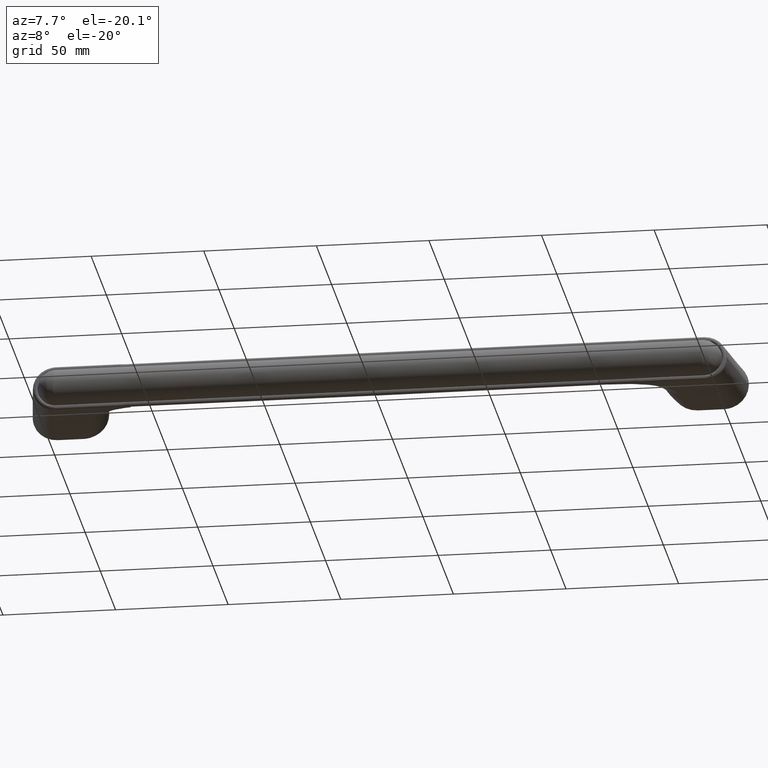
[diagram: clean part render]
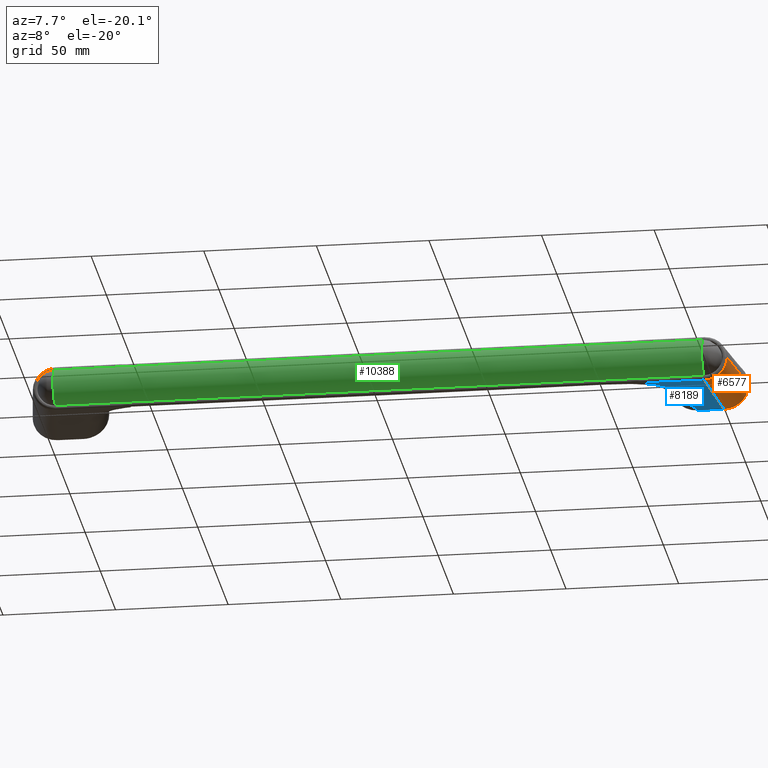
[diagram: same view with three faces highlighted in distinct colors, each labeled with its STEP entity id]
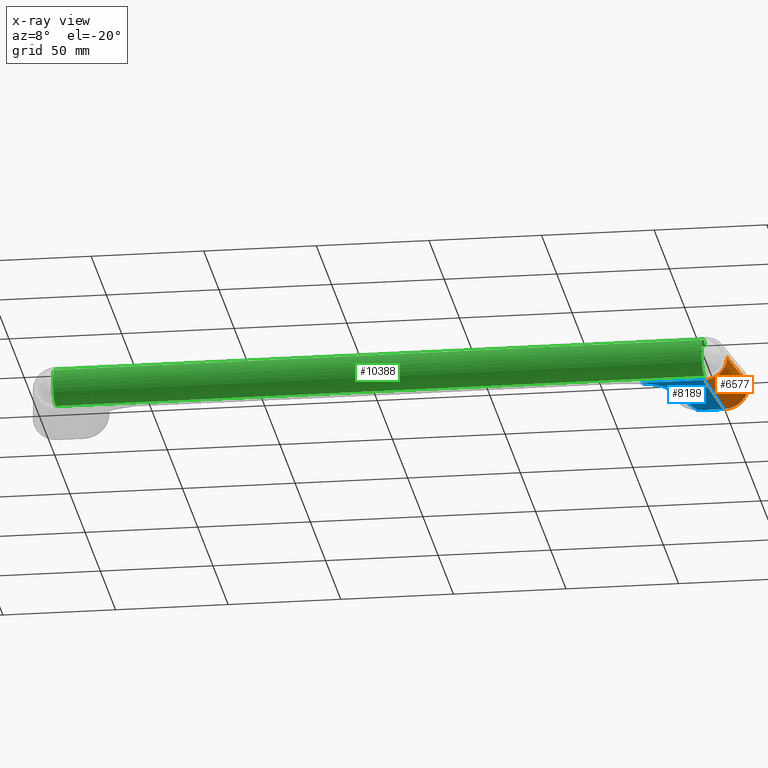
[diagram: x-ray of the same camera — body ghosted, the three highlighted faces saturated]
A machine part, auxiliary view with three faces highlighted in distinct colors.
The next image is the same camera in x-ray (body ghosted, the three faces saturated) — at least one of them is partly hidden behind the body in this view.
Their STEP definitions:

[orange] entity #6577 — the highlighted face is a freeform B-spline surface patch.
#2219=CARTESIAN_POINT('',(154.118395025761000,-0.005863998665268,-8.864281188054550));
#2220=VERTEX_POINT('',#2219);
#2461=CARTESIAN_POINT('',(144.051613881013000,-10.026647000498500,-8.972613018194080));
#2462=VERTEX_POINT('',#2461);
#2476=CARTESIAN_POINT('',(154.118395025761000,-0.005863998665268,-8.864281188054589));
#2477=CARTESIAN_POINT('',(154.118394725462710,-0.026468437212446,-8.864278995876823));
#2478=CARTESIAN_POINT('',(154.118329776194910,-0.047307925365856,-8.864277495472468));
#2479=CARTESIAN_POINT('',(154.118070835938200,-0.088731160652980,-8.864275906319451));
#2480=CARTESIAN_POINT('',(154.117488859197890,-0.150844982726064,-8.864275624686140));
#2481=CARTESIAN_POINT('',(154.114778478953410,-0.295630293106498,-8.864289654323878));
#2482=CARTESIAN_POINT('',(154.103966109948400,-0.584615119141234,-8.864376260649610));
#2483=CARTESIAN_POINT('',(154.085510409716310,-0.831318133291270,-8.864550255386869));
#2484=CARTESIAN_POINT('',(154.036412721906290,-1.323400129509541,-8.865030538050256));
#2485=CARTESIAN_POINT('',(153.987462559544500,-1.649692678402112,-8.865526789468641));
#2486=CARTESIAN_POINT('',(153.889425817109810,-2.136457478682508,-8.866538289922289));
#2487=CARTESIAN_POINT('',(153.852603115897410,-2.298304005113695,-8.866920427862532));
#2488=CARTESIAN_POINT('',(153.771448304156790,-2.618131000233573,-8.867766529222177));
#2489=CARTESIAN_POINT('',(153.727047011242800,-2.776490537233417,-8.868231202682090));
#2490=CARTESIAN_POINT('',(153.582567642318990,-3.246986986963615,-8.869747960414562));
#2491=CARTESIAN_POINT('',(153.359913509787300,-3.862118028114403,-8.872097022251241));
#2492=CARTESIAN_POINT('',(153.077978575219190,-4.453158391340931,-8.875091525490248));
#2493=CARTESIAN_POINT('',(152.843931572714810,-4.887256125905235,-8.877583542802988));
#2494=CARTESIAN_POINT('',(152.762143231233690,-5.030422222153888,-8.878455312215628));
#2495=CARTESIAN_POINT('',(152.633691969100000,-5.242827047545279,-8.879825827896536));
#2496=CARTESIAN_POINT('',(152.589871727844010,-5.313297521827853,-8.880293589338761));
#2497=CARTESIAN_POINT('',(152.500779752243010,-5.452688978723051,-8.881245038903094));
#2498=CARTESIAN_POINT('',(152.455457615451910,-5.521696880186513,-8.881729264401313));
#2499=CARTESIAN_POINT('',(152.225009059622290,-5.863335246814382,-8.884192436140879));
#2500=CARTESIAN_POINT('',(152.028397583181000,-6.125787598361668,-8.886297200454054));
#2501=CARTESIAN_POINT('',(151.611294211080890,-6.629529355245975,-8.890768630784866));
#2502=CARTESIAN_POINT('',(151.390801000508990,-6.870817595303606,-8.893135310863764));
#2503=CARTESIAN_POINT('',(150.925858537964590,-7.332164109190337,-8.898131745318622));
#2504=CARTESIAN_POINT('',(150.681411336465090,-7.552224200163999,-8.900761476658129));
#2505=CARTESIAN_POINT('',(150.360393853525810,-7.813599926709235,-8.904218641579472));
#2506=CARTESIAN_POINT('',(150.295439768244710,-7.865164204763490,-8.904918335216609));
#2507=CARTESIAN_POINT('',(150.164708716119800,-7.966346374664222,-8.906326941501341));
#2508=CARTESIAN_POINT('',(149.967112055001110,-8.115417971746989,-8.908456541301144));
#2509=CARTESIAN_POINT('',(149.765066231131700,-8.256476601227407,-8.910635671920876));
#2510=CARTESIAN_POINT('',(149.355135561880790,-8.528077747564012,-8.915059010255858));
#2511=CARTESIAN_POINT('',(148.793017659059590,-8.862218353909057,-8.921130033701617));
#2512=CARTESIAN_POINT('',(148.200118066207010,-9.140920937816222,-8.927544886325759));
#2513=CARTESIAN_POINT('',(147.743680639823000,-9.328763114719845,-8.932487683284084));
#2514=CARTESIAN_POINT('',(147.589570893582700,-9.387840108803204,-8.934157263917706));
#2515=CARTESIAN_POINT('',(147.277342325848590,-9.498773723982783,-8.937541338683504));
#2516=CARTESIAN_POINT('',(147.120170321067410,-9.550284189239440,-8.939245572588460));
#2517=CARTESIAN_POINT('',(146.647118911500710,-9.692647638346250,-8.944377120536680));
#2518=CARTESIAN_POINT('',(146.329029326102900,-9.771604154145120,-8.947830591399320));
#2519=CARTESIAN_POINT('',(145.687526629415200,-9.898318075584470,-8.954801213420733));
#2520=CARTESIAN_POINT('',(145.364113312907390,-9.946074278540198,-8.958318366770008));
#2521=CARTESIAN_POINT('',(144.874975108530210,-9.994159297866643,-8.963642282768097));
#2522=CARTESIAN_POINT('',(144.711258157940310,-10.006255855796081,-8.965424965894947));
#2523=CARTESIAN_POINT('',(144.464662261795300,-10.018420111826339,-8.968111235913863));
#2524=CARTESIAN_POINT('',(144.341109078355200,-10.023006404233859,-8.969457433606141));
#2525=CARTESIAN_POINT('',(144.196512650605000,-10.025713666492461,-8.971033411161956));
#2526=CARTESIAN_POINT('',(144.134445543863000,-10.026304216645221,-8.971709996932949));
#2527=CARTESIAN_POINT('',(144.093045806333410,-10.026570938550950,-8.972161314187515));
#2528=CARTESIAN_POINT('',(144.072217094258890,-10.026640846241801,-8.972388387808705));
#2529=CARTESIAN_POINT('',(144.051613881013000,-10.026647000498500,-8.972613018194060));
#2530=B_SPLINE_CURVE_WITH_KNOTS('',3,(#2476,#2477,#2478,#2479,#2480,#2481,#2482,#2483,#2484,#2485,#2486,#2487,#2488,#2489,#2490,#2491,#2492,#2493,#2494,#2495,#2496,#2497,#2498,#2499,#2500,#2501,#2502,#2503,#2504,#2505,#2506,#2507,#2508,#2509,#2510,#2511,#2512,#2513,#2514,#2515,#2516,#2517,#2518,#2519,#2520,#2521,#2522,#2523,#2524,#2525,#2526,#2527,#2528,#2529),.UNSPECIFIED.,.F.,.U.,(4,2,1,1,1,2,2,2,2,1,2,2,2,2,2,2,2,2,1,2,1,2,2,2,2,2,2,1,1,2,4),(0.0,0.003906249999999,0.007812499999998,0.015624999999996,0.031249999999993,0.062499999999985,0.124999999999972,0.156249999999965,0.187499999999958,0.249999999999942,0.312499999999927,0.343749999999920,0.359374999999919,0.374999999999917,0.437499999999918,0.499999999999919,0.562499999999920,0.578124999999920,0.593749999999920,0.624999999999925,0.687499999999934,0.749999999999943,0.781249999999950,0.812499999999957,0.874999999999971,0.937499999999986,0.968749999999995,0.984375000000000,0.992187500000000,0.996093750000000,1.0),.UNSPECIFIED.);
#2531=EDGE_CURVE('',#2220,#2462,#2530,.T.);
#6489=CARTESIAN_POINT('',(153.954330560150110,-0.004564620976099,-7.666610505076090));
#6490=CARTESIAN_POINT('',(153.917568917909220,-9.983513783799339,-7.398250497889499));
#6491=CARTESIAN_POINT('',(144.027241213010600,-10.020604825674930,-8.752073621615006));
#6492=CARTESIAN_POINT('',(155.648009075775490,-0.017978421872219,-20.030464536515730));
#6493=CARTESIAN_POINT('',(155.610049856293980,-10.322009971403826,-19.753362214861955));
#6494=CARTESIAN_POINT('',(145.397526769579510,-10.360309321310821,-21.151288584837211));
#6495=CARTESIAN_POINT('',(157.341687591400300,-0.031392222768340,-32.394318567955303));
#6496=CARTESIAN_POINT('',(157.302530794678490,-10.660506159008319,-32.108473931834368));
#6497=CARTESIAN_POINT('',(146.767812326148200,-10.700013816946710,-33.550503548059382));
#6498=CARTESIAN_POINT('',(159.035366107025200,-0.044806023664461,-44.758172599394932));
#6499=CARTESIAN_POINT('',(158.995011733063280,-10.999002346612802,-44.463585648806841));
#6500=CARTESIAN_POINT('',(148.138097882716890,-11.039718312582600,-45.949718511281581));
#6508=(BOUNDED_SURFACE()B_SPLINE_SURFACE(2,3,((#6489,#6492,#6495,#6498),(#6490,#6493,#6496,#6499),(#6491,#6494,#6497,#6500)),.UNSPECIFIED.,.F.,.F.,.U.)B_SPLINE_SURFACE_WITH_KNOTS((3,3),(4,4),(0.0,18.175924096353711),(0.0,37.437982320042622),.UNSPECIFIED.)GEOMETRIC_REPRESENTATION_ITEM()RATIONAL_B_SPLINE_SURFACE(((1.0,1.0,1.0,1.0),(0.708419695037308,0.708419695037308,0.708419695037308,0.708419695037308),(1.0,1.0,1.0,1.0)))REPRESENTATION_ITEM('')SURFACE());
#6509=CARTESIAN_POINT('',(159.0,-0.044525926872985,-44.500000000000000));
#6510=VERTEX_POINT('',#6509);
#6511=CARTESIAN_POINT('',(154.118395025760690,-0.005863998665268,-8.864281188054477));
#6512=CARTESIAN_POINT('',(155.745596683840800,-0.018751308067822,-20.742854125369639));
#6513=CARTESIAN_POINT('',(157.372798341920400,-0.031638617470378,-32.621427062684752));
#6514=CARTESIAN_POINT('',(159.000000000000110,-0.044525926872934,-44.499999999999908));
#6515=B_SPLINE_CURVE_WITH_KNOTS('',3,(#6511,#6512,#6513,#6514),.UNSPECIFIED.,.F.,.U.,(4,4),(0.410283557929857,0.598444409665557),.UNSPECIFIED.);
#6516=EDGE_CURVE('',#2220,#6510,#6515,.T.);
#6517=ORIENTED_EDGE('',*,*,#6516,.F.);
#6518=ORIENTED_EDGE('',*,*,#2531,.T.);
#6519=CARTESIAN_POINT('',(147.977883841506210,-11.0,-44.500000000000000));
#6520=VERTEX_POINT('',#6519);
#6521=CARTESIAN_POINT('',(147.977883841506210,-10.999999999999940,-44.499999999999993));
#6522=CARTESIAN_POINT('',(146.669127188008390,-10.675549000166120,-32.657537672731337));
#6523=CARTESIAN_POINT('',(145.360370534510710,-10.351098000332311,-20.815075345462720));
#6524=CARTESIAN_POINT('',(144.051613881012800,-10.026647000498491,-8.972613018194059));
#6525=B_SPLINE_CURVE_WITH_KNOTS('',3,(#6521,#6522,#6523,#6524),.UNSPECIFIED.,.F.,.U.,(4,4),(0.405120867099112,0.592174735091114),.UNSPECIFIED.);
#6526=EDGE_CURVE('',#6520,#2462,#6525,.T.);
#6527=ORIENTED_EDGE('',*,*,#6526,.F.);
#6528=CARTESIAN_POINT('',(159.0,-0.044525926872934,-44.500000000000000));
#6529=CARTESIAN_POINT('',(159.0,-0.407498315927945,-44.500000000000000));
#6530=CARTESIAN_POINT('',(158.981889829472810,-0.767026726284930,-44.500000000000007));
#6531=CARTESIAN_POINT('',(158.910933012837800,-1.479477773642349,-44.500000000000000));
#6532=CARTESIAN_POINT('',(158.805230071652800,-2.185321212716099,-44.499999999999950));
#6533=CARTESIAN_POINT('',(158.630888912899990,-2.878111844869789,-44.500000000000007));
#6534=CARTESIAN_POINT('',(158.473967759852910,-3.392729013785964,-44.500000000000043));
#6535=CARTESIAN_POINT('',(158.417292083807810,-3.563437296492686,-44.499999999999993));
#6536=CARTESIAN_POINT('',(158.325598417006200,-3.818229367869922,-44.500000000000007));
#6537=CARTESIAN_POINT('',(158.293919965173810,-3.902948230677298,-44.499999999999993));
#6538=CARTESIAN_POINT('',(158.228307303853800,-4.071956982898296,-44.500000000000007));
#6539=CARTESIAN_POINT('',(158.194411094441700,-4.156139544059227,-44.500000000000007));
#6540=CARTESIAN_POINT('',(158.020279497627400,-4.573560324166395,-44.500000000000007));
#6541=CARTESIAN_POINT('',(157.865450889315300,-4.898113368507739,-44.500000000000021));
#6542=CARTESIAN_POINT('',(157.525694204087900,-5.529024859237380,-44.500000000000021));
#6543=CARTESIAN_POINT('',(157.340763715516490,-5.835381847822063,-44.500000000000007));
#6544=CARTESIAN_POINT('',(156.940853907980110,-6.429931836943012,-44.500000000000007));
#6545=CARTESIAN_POINT('',(156.725876439671910,-6.718125956168764,-44.500000000000000));
#6546=CARTESIAN_POINT('',(156.380255365199790,-7.136420423223805,-44.500000000000021));
#6547=CARTESIAN_POINT('',(156.261004825450100,-7.273671593730940,-44.499999999999993));
#6548=CARTESIAN_POINT('',(156.017347834750210,-7.540497282603192,-44.499999999999993));
#6549=CARTESIAN_POINT('',(155.892650355411010,-7.670444819386759,-44.500000000000007));
#6550=CARTESIAN_POINT('',(155.510103560534700,-8.050075819065974,-44.500000000000007));
#6551=CARTESIAN_POINT('',(154.977536016722410,-8.529067597202301,-44.499999999999950));
#6552=CARTESIAN_POINT('',(154.400577068974290,-8.954441135451301,-44.500000000000028));
#6553=CARTESIAN_POINT('',(153.950960969831610,-9.253062351110087,-44.500000000000021));
#6554=CARTESIAN_POINT('',(153.798267796174200,-9.349195236392196,-44.499999999999993));
#6555=CARTESIAN_POINT('',(153.564917544260790,-9.488188129219759,-44.500000000000000));
#6556=CARTESIAN_POINT('',(153.486321612198000,-9.533701376842524,-44.500000000000028));
#6557=CARTESIAN_POINT('',(153.328478770808690,-9.622527319566906,-44.500000000000021));
#6558=CARTESIAN_POINT('',(153.249164225649390,-9.665883399799860,-44.499999999999979));
#6559=CARTESIAN_POINT('',(152.850647481527200,-9.877437426348809,-44.499999999999972));
#6560=CARTESIAN_POINT('',(152.525627639893090,-10.029994995418720,-44.500000000000028));
#6561=CARTESIAN_POINT('',(151.863489612693910,-10.302584474314621,-44.500000000000021));
#6562=CARTESIAN_POINT('',(151.526370769765210,-10.422614616858571,-44.500000000000028));
#6563=CARTESIAN_POINT('',(150.839995676863510,-10.630044223905980,-44.500000000000028));
#6564=CARTESIAN_POINT('',(150.490740463196090,-10.717446474454009,-44.500000000000000));
#6565=CARTESIAN_POINT('',(149.957459434442910,-10.823283341003419,-44.500000000000000));
#6566=CARTESIAN_POINT('',(149.778650769162990,-10.854224397639490,-44.500000000000043));
#6567=CARTESIAN_POINT('',(149.420744462236510,-10.907168645644861,-44.500000000000050));
#6568=CARTESIAN_POINT('',(149.241374411356500,-10.929227205387839,-44.500000000000028));
#6569=CARTESIAN_POINT('',(148.702018909039590,-10.982218752023490,-44.500000000000021));
#6570=CARTESIAN_POINT('',(148.340791167775510,-11.0,-44.499999999999993));
#6571=CARTESIAN_POINT('',(147.977883841506210,-11.0,-44.500000000000000));
#6572=B_SPLINE_CURVE_WITH_KNOTS('',3,(#6528,#6529,#6530,#6531,#6532,#6533,#6534,#6535,#6536,#6537,#6538,#6539,#6540,#6541,#6542,#6543,#6544,#6545,#6546,#6547,#6548,#6549,#6550,#6551,#6552,#6553,#6554,#6555,#6556,#6557,#6558,#6559,#6560,#6561,#6562,#6563,#6564,#6565,#6566,#6567,#6568,#6569,#6570,#6571),.UNSPECIFIED.,.F.,.U.,(4,2,1,2,2,2,2,2,2,2,2,2,1,2,2,2,2,2,2,2,2,2,4),(0.0,0.062499999999998,0.124999999999996,0.187499999999994,0.218749999999992,0.234374999999993,0.249999999999993,0.312499999999998,0.375000000000002,0.437500000000007,0.468750000000009,0.500000000000011,0.562500000000016,0.625000000000020,0.656250000000022,0.671875000000021,0.687500000000020,0.750000000000016,0.812500000000012,0.875000000000008,0.906250000000006,0.937500000000004,1.0),.UNSPECIFIED.);
#6573=EDGE_CURVE('',#6510,#6520,#6572,.T.);
#6574=ORIENTED_EDGE('',*,*,#6573,.F.);
#6575=EDGE_LOOP('',(#6517,#6518,#6527,#6574));
#6576=FACE_OUTER_BOUND('',#6575,.T.);
#6577=ADVANCED_FACE('',(#6576),#6508,.T.);

[blue] entity #8189 — the highlighted face is a freeform B-spline surface patch.
#2461=CARTESIAN_POINT('',(144.051613881013000,-10.026647000498500,-8.972613018194080));
#2462=VERTEX_POINT('',#2461);
#2644=CARTESIAN_POINT('',(115.210512625288000,-10.026647000498540,-8.972613018194060));
#2645=VERTEX_POINT('',#2644);
#2659=CARTESIAN_POINT('',(144.051613881013000,-10.026647000498500,-8.972613018194080));
#2660=CARTESIAN_POINT('',(115.210512625288000,-10.026647000498540,-8.972613018194060));
#2661=QUASI_UNIFORM_CURVE('',1,(#2659,#2660),.UNSPECIFIED.,.F.,.U.);
#2662=EDGE_CURVE('',#2462,#2645,#2661,.T.);
#5537=CARTESIAN_POINT('',(130.986903452424400,-10.494442814030400,-26.047161413613750));
#5538=VERTEX_POINT('',#5537);
#5539=CARTESIAN_POINT('',(115.210512625288000,-10.026647000498549,-8.972613018194247));
#5540=CARTESIAN_POINT('',(115.458894441901610,-10.028651578376920,-9.045780115903202));
#5541=CARTESIAN_POINT('',(115.706724795572400,-10.030724295372220,-9.121434291555696));
#5542=CARTESIAN_POINT('',(116.200066964508490,-10.035014414848989,-9.278023663476498));
#5543=CARTESIAN_POINT('',(116.445668837667300,-10.037232509596850,-9.358984127470629));
#5544=CARTESIAN_POINT('',(117.178938000490500,-10.044128359883549,-9.610682680646711));
#5545=CARTESIAN_POINT('',(117.663060421744700,-10.049048256050449,-9.790258903374937));
#5546=CARTESIAN_POINT('',(118.620311978227600,-10.059638970809210,-10.176820019271490));
#5547=CARTESIAN_POINT('',(119.093444359127400,-10.065309567697820,-10.383796820270410));
#5548=CARTESIAN_POINT('',(119.793910646005000,-10.074446096076009,-10.717280129541001));
#5549=CARTESIAN_POINT('',(120.025862130882300,-10.077596612908250,-10.832274002009751));
#5550=CARTESIAN_POINT('',(120.486536843625600,-10.084118160309730,-11.070310498913850));
#5551=CARTESIAN_POINT('',(120.714655952246400,-10.087480861474290,-11.193049100057189));
#5552=CARTESIAN_POINT('',(121.841250887813800,-10.104776638913830,-11.824345021023429));
#5553=CARTESIAN_POINT('',(122.700386234868400,-10.120194052785459,-12.387080666937040));
#5554=CARTESIAN_POINT('',(123.921436203992100,-10.145857996821780,-13.323814690179031));
#5555=CARTESIAN_POINT('',(124.317178052281900,-10.154835589094970,-13.651496831208680));
#5556=CARTESIAN_POINT('',(124.893174108030610,-10.168962821500070,-14.167140850279941));
#5557=CARTESIAN_POINT('',(125.082234825146000,-10.173782108982859,-14.343044855779761));
#5558=CARTESIAN_POINT('',(125.454334651851300,-10.183646568444740,-14.703097651475071));
#5559=CARTESIAN_POINT('',(125.637651403525790,-10.188700342785090,-14.887560427878190));
#5560=CARTESIAN_POINT('',(126.531686458354400,-10.214340642408921,-15.823431430003660));
#5561=CARTESIAN_POINT('',(127.179997996602490,-10.236155975194681,-16.619691132715161));
#5562=CARTESIAN_POINT('',(128.052694933115790,-10.270821844511669,-17.884995451822839));
#5563=CARTESIAN_POINT('',(128.326904143846600,-10.282702141115120,-18.318626308362290));
#5564=CARTESIAN_POINT('',(128.712642154842400,-10.301020634364351,-18.987251359009338));
#5565=CARTESIAN_POINT('',(128.836954226414410,-10.307209897024240,-19.213159461992149));
#5566=CARTESIAN_POINT('',(129.016908516521910,-10.316620637300341,-19.556651506240929));
#5567=CARTESIAN_POINT('',(129.075807309587790,-10.319778698279389,-19.671920740087550));
#5568=CARTESIAN_POINT('',(129.191409924710310,-10.326137563825510,-19.904019348853080));
#5569=CARTESIAN_POINT('',(129.248158241614500,-10.329341101347969,-20.020948476650869));
#5570=CARTESIAN_POINT('',(129.525152731577890,-10.345396130623460,-20.606957086443010));
#5571=CARTESIAN_POINT('',(129.726054695047400,-10.358404770384530,-21.081772471134069));
#5572=CARTESIAN_POINT('',(130.087462392677710,-10.384743399033310,-22.043132484463751));
#5573=CARTESIAN_POINT('',(130.247966796121600,-10.398073398506780,-22.529677499482549));
#5574=CARTESIAN_POINT('',(130.528779215803890,-10.425053156850639,-23.514438748329720));
#5575=CARTESIAN_POINT('',(130.649088256077190,-10.438702907574930,-24.012654684824550));
#5576=CARTESIAN_POINT('',(130.848930720225100,-10.466326776147390,-25.020925958669949));
#5577=CARTESIAN_POINT('',(130.928467850130400,-10.480300864514390,-25.530980219956419));
#5578=CARTESIAN_POINT('',(130.986903452424600,-10.494442814030400,-26.047161413613750));
#5579=B_SPLINE_CURVE_WITH_KNOTS('',3,(#5539,#5540,#5541,#5542,#5543,#5544,#5545,#5546,#5547,#5548,#5549,#5550,#5551,#5552,#5553,#5554,#5555,#5556,#5557,#5558,#5559,#5560,#5561,#5562,#5563,#5564,#5565,#5566,#5567,#5568,#5569,#5570,#5571,#5572,#5573,#5574,#5575,#5576,#5577,#5578),.UNSPECIFIED.,.F.,.U.,(4,2,2,2,2,2,2,2,2,2,2,2,2,2,2,2,2,2,2,4),(0.0,0.031250000000001,0.062500000000002,0.125000000000004,0.187500000000006,0.218750000000006,0.250000000000007,0.375000000000007,0.437500000000007,0.468750000000007,0.500000000000006,0.625000000000006,0.687500000000004,0.718750000000005,0.734375000000005,0.750000000000005,0.812500000000004,0.875000000000002,0.937500000000001,1.0),.UNSPECIFIED.);
#5580=EDGE_CURVE('',#2645,#5538,#5579,.T.);
#5684=CARTESIAN_POINT('',(136.434945395077990,-11.0,-44.500000000000000));
#5685=VERTEX_POINT('',#5684);
#5735=CARTESIAN_POINT('',(130.986903452424400,-10.494442814030400,-26.047161413613750));
#5736=CARTESIAN_POINT('',(131.649198594902200,-10.654724288027300,-31.897435626173710));
#5737=CARTESIAN_POINT('',(133.806579152353010,-10.810372118778099,-37.578581848351192));
#5738=CARTESIAN_POINT('',(135.963959709803990,-10.966019949528921,-43.259728070528702));
#5739=CARTESIAN_POINT('',(136.120954938228610,-10.977346633019289,-43.673152047019123));
#5740=CARTESIAN_POINT('',(136.277950166653310,-10.988673316509660,-44.086576023509558));
#5741=CARTESIAN_POINT('',(136.434945395077900,-11.000000000000030,-44.499999999999993));
#5742=B_SPLINE_CURVE_WITH_KNOTS('',3,(#5735,#5736,#5737,#5738,#5739,#5740,#5741),.UNSPECIFIED.,.F.,.U.,(4,3,4),(0.666011694110843,0.977343968644060,1.0),.UNSPECIFIED.);
#5743=EDGE_CURVE('',#5538,#5685,#5742,.T.);
#6519=CARTESIAN_POINT('',(147.977883841506210,-11.0,-44.500000000000000));
#6520=VERTEX_POINT('',#6519);
#6521=CARTESIAN_POINT('',(147.977883841506210,-10.999999999999940,-44.499999999999993));
#6522=CARTESIAN_POINT('',(146.669127188008390,-10.675549000166120,-32.657537672731337));
#6523=CARTESIAN_POINT('',(145.360370534510710,-10.351098000332311,-20.815075345462720));
#6524=CARTESIAN_POINT('',(144.051613881012800,-10.026647000498491,-8.972613018194059));
#6525=B_SPLINE_CURVE_WITH_KNOTS('',3,(#6521,#6522,#6523,#6524),.UNSPECIFIED.,.F.,.U.,(4,4),(0.405120867099112,0.592174735091114),.UNSPECIFIED.);
#6526=EDGE_CURVE('',#6520,#2462,#6525,.T.);
#8173=CARTESIAN_POINT('',(113.573779801638200,-9.978028029197123,-7.198020440817514));
#8174=CARTESIAN_POINT('',(113.573779801638200,-11.048619006111210,-46.274593847934923));
#8175=CARTESIAN_POINT('',(149.614619887750390,-9.978028029197123,-7.198020440817514));
#8176=CARTESIAN_POINT('',(149.614619887750390,-11.048619006111210,-46.274593847934923));
#8177=B_SPLINE_SURFACE_WITH_KNOTS('',1,1,((#8173,#8175),(#8174,#8176)),.UNSPECIFIED.,.F.,.F.,.U.,(2,2),(2,2),(0.0,39.091236284897477),(0.0,36.040840086112183),.UNSPECIFIED.);
#8178=ORIENTED_EDGE('',*,*,#6526,.T.);
#8179=ORIENTED_EDGE('',*,*,#2662,.T.);
#8180=ORIENTED_EDGE('',*,*,#5580,.T.);
#8181=ORIENTED_EDGE('',*,*,#5743,.T.);
#8182=CARTESIAN_POINT('',(147.977883841506210,-11.0,-44.500000000000000));
#8183=CARTESIAN_POINT('',(136.434945395077990,-11.0,-44.500000000000000));
#8184=QUASI_UNIFORM_CURVE('',1,(#8182,#8183),.UNSPECIFIED.,.F.,.U.);
#8185=EDGE_CURVE('',#6520,#5685,#8184,.T.);
#8186=ORIENTED_EDGE('',*,*,#8185,.F.);
#8187=EDGE_LOOP('',(#8178,#8179,#8180,#8181,#8186));
#8188=FACE_OUTER_BOUND('',#8187,.T.);
#8189=ADVANCED_FACE('',(#8188),#8177,.T.);

[green] entity #10388 — the highlighted face is a freeform B-spline surface patch.
#10226=CARTESIAN_POINT('',(144.0,6.928203230275400,-12.0));
#10227=VERTEX_POINT('',#10226);
#10228=CARTESIAN_POINT('',(144.0,-6.928203230275360,-12.0));
#10229=VERTEX_POINT('',#10228);
#10245=CARTESIAN_POINT('',(-144.0,-6.928203230275489,-12.0));
#10246=VERTEX_POINT('',#10245);
#10247=CARTESIAN_POINT('',(144.0,-6.928203230275360,-12.0));
#10248=CARTESIAN_POINT('',(-144.0,-6.928203230275489,-12.0));
#10249=QUASI_UNIFORM_CURVE('',1,(#10247,#10248),.UNSPECIFIED.,.F.,.U.);
#10250=EDGE_CURVE('',#10229,#10246,#10249,.T.);
#10252=CARTESIAN_POINT('',(-144.0,6.928203230275489,-12.0));
#10253=VERTEX_POINT('',#10252);
#10269=CARTESIAN_POINT('',(-144.0,6.928203230275489,-12.0));
#10270=CARTESIAN_POINT('',(144.0,6.928203230275400,-12.0));
#10271=QUASI_UNIFORM_CURVE('',1,(#10269,#10270),.UNSPECIFIED.,.F.,.U.);
#10272=EDGE_CURVE('',#10253,#10227,#10271,.T.);
#10324=CARTESIAN_POINT('',(-144.0,-6.928203230275368,-11.999999999999931));
#10325=CARTESIAN_POINT('',(-144.0,-10.284601754984209,-6.186547224754694));
#10326=CARTESIAN_POINT('',(-144.0,-5.142300877492093,-1.871644455048520));
#10327=CARTESIAN_POINT('',(-144.0,2.723730E-014,2.443258314657654));
#10328=CARTESIAN_POINT('',(-144.0,5.142300877492142,-1.871644455048527));
#10329=CARTESIAN_POINT('',(-144.0,10.284601754984257,-6.186547224754707));
#10330=CARTESIAN_POINT('',(-144.0,6.928203230275403,-11.999999999999940));
#10338=(BOUNDED_CURVE()B_SPLINE_CURVE(2,(#10324,#10325,#10326,#10327,#10328,#10329,#10330),.UNSPECIFIED.,.F.,.U.)B_SPLINE_CURVE_WITH_KNOTS((3,2,2,3),(0.0,0.333333333333333,0.666666666666667,1.0),.UNSPECIFIED.)CURVE()GEOMETRIC_REPRESENTATION_ITEM()RATIONAL_B_SPLINE_CURVE((1.0,0.766044443118983,1.0,0.766044443118983,1.0,0.766044443118983,1.0))REPRESENTATION_ITEM(''));
#10339=EDGE_CURVE('',#10246,#10253,#10338,.T.);
#10344=CARTESIAN_POINT('',(151.200000000000100,6.821121314832520,-12.179988517727770));
#10345=CARTESIAN_POINT('',(-151.380000000000110,6.821121314832520,-12.179988517727770));
#10346=CARTESIAN_POINT('',(151.200000000000070,10.454729897517202,-6.250478221708298));
#10347=CARTESIAN_POINT('',(-151.380000000000080,10.454729897517202,-6.250478221708298));
#10348=CARTESIAN_POINT('',(151.200000000000100,5.088625762222081,-1.827003332898673));
#10349=CARTESIAN_POINT('',(-151.380000000000110,5.088625762222081,-1.827003332898673));
#10350=CARTESIAN_POINT('',(151.200000000000070,-0.277478373073042,2.596471555910950));
#10351=CARTESIAN_POINT('',(-151.380000000000080,-0.277478373073042,2.596471555910950));
#10352=CARTESIAN_POINT('',(151.200000000000100,-5.404721660925035,-2.101781305519287));
#10353=CARTESIAN_POINT('',(-151.380000000000110,-5.404721660925035,-2.101781305519287));
#10354=CARTESIAN_POINT('',(151.200000000000070,-10.531964948777029,-6.800034166949525));
#10355=CARTESIAN_POINT('',(-151.380000000000080,-10.531964948777029,-6.800034166949525));
#10356=CARTESIAN_POINT('',(151.200000000000100,-6.593009508975995,-12.531249895398650));
#10357=CARTESIAN_POINT('',(-151.380000000000110,-6.593009508975995,-12.531249895398650));
#10365=(BOUNDED_SURFACE()B_SPLINE_SURFACE(1,2,((#10344,#10346,#10348,#10350,#10352,#10354,#10356),(#10345,#10347,#10349,#10351,#10353,#10355,#10357)),.UNSPECIFIED.,.F.,.F.,.U.)B_SPLINE_SURFACE_WITH_KNOTS((2,2),(3,2,2,3),(0.0,302.580000000000210),(0.0,11.964309743513430,23.928619487026861,35.892929230540290),.UNSPECIFIED.)GEOMETRIC_REPRESENTATION_ITEM()RATIONAL_B_SPLINE_SURFACE(((1.0,0.754709580222772,1.0,0.754709580222772,1.0,0.754709580222772,1.0),(1.0,0.754709580222772,1.0,0.754709580222772,1.0,0.754709580222772,1.0)))REPRESENTATION_ITEM('')SURFACE());
#10366=ORIENTED_EDGE('',*,*,#10250,.F.);
#10367=CARTESIAN_POINT('',(144.0,-6.928203230275376,-12.000000000000011));
#10368=CARTESIAN_POINT('',(144.000000000000030,-10.284601754984308,-6.186547224754741));
#10369=CARTESIAN_POINT('',(144.0,-5.142300877492146,-1.871644455048500));
#10370=CARTESIAN_POINT('',(144.000000000000030,1.856368E-014,2.443258314657743));
#10371=CARTESIAN_POINT('',(144.0,5.142300877492184,-1.871644455048498));
#10372=CARTESIAN_POINT('',(144.000000000000030,10.284601754984353,-6.186547224754738));
#10373=CARTESIAN_POINT('',(144.0,6.928203230275417,-12.000000000000011));
#10381=(BOUNDED_CURVE()B_SPLINE_CURVE(2,(#10367,#10368,#10369,#10370,#10371,#10372,#10373),.UNSPECIFIED.,.F.,.U.)B_SPLINE_CURVE_WITH_KNOTS((3,2,2,3),(0.0,0.333333333333333,0.666666666666667,1.0),.UNSPECIFIED.)CURVE()GEOMETRIC_REPRESENTATION_ITEM()RATIONAL_B_SPLINE_CURVE((1.0,0.766044443118981,1.0,0.766044443118981,1.0,0.766044443118981,1.0))REPRESENTATION_ITEM(''));
#10382=EDGE_CURVE('',#10229,#10227,#10381,.T.);
#10383=ORIENTED_EDGE('',*,*,#10382,.T.);
#10384=ORIENTED_EDGE('',*,*,#10272,.F.);
#10385=ORIENTED_EDGE('',*,*,#10339,.F.);
#10386=EDGE_LOOP('',(#10366,#10383,#10384,#10385));
#10387=FACE_OUTER_BOUND('',#10386,.T.);
#10388=ADVANCED_FACE('',(#10387),#10365,.T.);